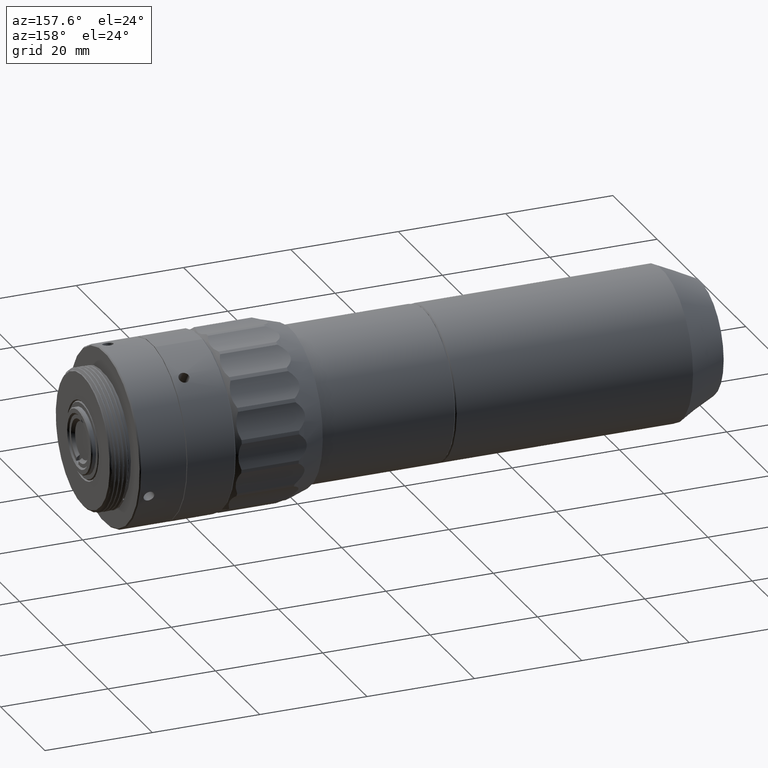
[diagram: clean part render]
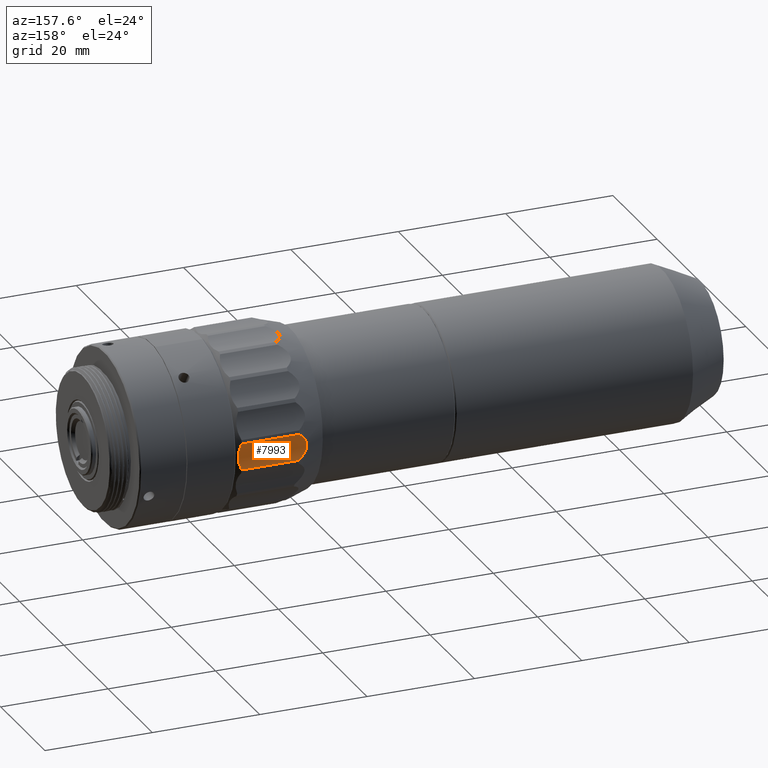
[diagram: same view with one face highlighted and labeled with its STEP entity id]
A machine part, auxiliary view. The second image highlights one B-rep face of the part: STEP entity #7993.
In plain terms, the highlighted cylindrical surface (partial cylindrical patch) has radius 10 mm, axis along (1, 0, 0).
Its self-contained STEP definition (entity closure, byte-faithful):
#874 = CARTESIAN_POINT ( 'NONE',  ( 24.43572500525977631, 14.45136645662996067, 72.06540957647895596 ) ) ;
#1125 = CARTESIAN_POINT ( 'NONE',  ( 25.37886236187067013, 14.60968303848795813, 70.89377789609189051 ) ) ;
#1288 = LINE ( 'NONE', #20358, #12922 ) ;
#2643 = VERTEX_POINT ( 'NONE', #3071 ) ;
#3071 = CARTESIAN_POINT ( 'NONE',  ( 25.76425907758551048, 14.80047125062194446, 75.51496427602772599 ) ) ;
#4043 = EDGE_LOOP ( 'NONE', ( #10426, #12063, #10782, #12288 ) ) ;
#4434 = CARTESIAN_POINT ( 'NONE',  ( 36.46425907759164886, 14.80047125062194446, 75.51496427602772599 ) ) ;
#4611 = CARTESIAN_POINT ( 'NONE',  ( 24.20144253388970412, 14.43262482175803108, 73.17374834973583120 ) ) ;
#4849 = CARTESIAN_POINT ( 'NONE',  ( 24.56251818497924333, 14.47087733236256035, 71.84483736942345899 ) ) ;
#5052 = DIRECTION ( 'NONE',  ( 1.000000000000000000, 0.000000000000000000, 0.000000000000000000 ) ) ;
#5280 = CARTESIAN_POINT ( 'NONE',  ( 36.46425907759164886, 14.80047125062194446, 75.51496427602772599 ) ) ;
#5856 = B_SPLINE_CURVE_WITH_KNOTS ( 'NONE', 3,
 ( #10771, #7040, #18491, #12646, #22369, #19865, #6661, #20247, #10517, #5280 ),
 .UNSPECIFIED., .F., .F.,
 ( 4, 2, 2, 2, 4 ),
 ( 1.398578778534940505E-17, 0.001274480159706693760, 0.002548960319413373643, 0.003823440479120053526, 0.005097920638826733408 ),
 .UNSPECIFIED. ) ;
#6247 = VERTEX_POINT ( 'NONE', #16790 ) ;
#6609 = CARTESIAN_POINT ( 'NONE',  ( 24.85831798173217777, 14.51923568401270259, 71.43341021666023494 ) ) ;
#6661 = CARTESIAN_POINT ( 'NONE',  ( 36.92018048830208699, 14.47719618345560022, 73.89518809513694464 ) ) ;
#6725 = CARTESIAN_POINT ( 'NONE',  ( 25.02076952798814347, 14.63508129636287869, 74.84531054459854715 ) ) ;
#6850 = CARTESIAN_POINT ( 'NONE',  ( 24.43228681305926386, 14.49881527963279382, 74.02897023541585497 ) ) ;
#7040 = CARTESIAN_POINT ( 'NONE',  ( 36.62124629936771925, 14.58992248713363971, 70.96301703124602511 ) ) ;
#7993 = ADVANCED_FACE ( 'NONE', ( #10912 ), #18512, .F. ) ;
#8198 = CARTESIAN_POINT ( 'NONE',  ( 36.46425907759165597, 14.67934525651283728, 70.57279280538578803 ) ) ;
#8477 = CARTESIAN_POINT ( 'NONE',  ( 24.21390534560338992, 14.43821037216553016, 73.30224784130243165 ) ) ;
#8852 = CARTESIAN_POINT ( 'NONE',  ( 25.76425907758549272, 14.67934525651283728, 70.57279280538578803 ) ) ;
#9034 = DIRECTION ( 'NONE',  ( -1.000000000000000000, -0.000000000000000000, -0.000000000000000000 ) ) ;
#10342 = CARTESIAN_POINT ( 'NONE',  ( 24.20208820136315708, 14.42651488071182619, 72.91929957618501135 ) ) ;
#10426 = ORIENTED_EDGE ( 'NONE', *, *, #22778, .F. ) ;
#10464 = CARTESIAN_POINT ( 'NONE',  ( 25.56756979872729829, 14.64349316649185795, 70.72924461481908054 ) ) ;
#10517 = CARTESIAN_POINT ( 'NONE',  ( 36.62139389121818311, 14.69193764029637173, 75.12922688590818154 ) ) ;
#10596 = CARTESIAN_POINT ( 'NONE',  ( 25.76425907758551048, 14.80047125062194446, 75.51496427602772599 ) ) ;
#10714 = CARTESIAN_POINT ( 'NONE',  ( 24.85223538077675087, 14.59700813527836694, 74.65582744075466337 ) ) ;
#10771 = CARTESIAN_POINT ( 'NONE',  ( 36.46425907759165597, 14.67934525651283728, 70.57279280538578803 ) ) ;
#10782 = ORIENTED_EDGE ( 'NONE', *, *, #21091, .F. ) ;
#10912 = FACE_OUTER_BOUND ( 'NONE', #4043, .T. ) ;
#11285 = B_SPLINE_CURVE_WITH_KNOTS ( 'NONE', 3,
 ( #10596, #18190, #12593, #6725, #10714, #21691, #6850, #21816, #18313, #8477, #4611, #10342, #14331, #21934, #17947, #874, #4849, #6609, #14215, #1125, #10464, #8852 ),
 .UNSPECIFIED., .F., .F.,
 ( 4, 2, 2, 2, 2, 2, 2, 2, 2, 2, 4 ),
 ( 1.743375517060540341E-17, 0.0007603032413495378365, 0.001520606482699058109, 0.002280909724048578273, 0.002661061344723339873, 0.003041212965398101473, 0.003421364586072863073, 0.003801516206747625106, 0.004561819448097105371, 0.005322122689446586938, 0.006082425930796068504 ),
 .UNSPECIFIED. ) ;
#12063 = ORIENTED_EDGE ( 'NONE', *, *, #13818, .F. ) ;
#12288 = ORIENTED_EDGE ( 'NONE', *, *, #17616, .F. ) ;
#12535 = DIRECTION ( 'NONE',  ( 0.000000000000000000, 0.3188937762648219598, -0.9477904617897152661 ) ) ;
#12593 = CARTESIAN_POINT ( 'NONE',  ( 25.37743441865542238, 14.71485256217145654, 75.19659218055055305 ) ) ;
#12646 = CARTESIAN_POINT ( 'NONE',  ( 36.91798656612413509, 14.43682633883746469, 72.19310035137165471 ) ) ;
#12922 = VECTOR ( 'NONE', #9034, 1000.000000000000000 ) ;
#13818 = EDGE_CURVE ( 'NONE', #17374, #21770, #5856, .T. ) ;
#14215 = CARTESIAN_POINT ( 'NONE',  ( 25.02434504061425358, 14.54757791741299044, 71.24596993704039960 ) ) ;
#14331 = CARTESIAN_POINT ( 'NONE',  ( 24.21482652098152144, 14.42592169107167877, 72.79349645428804649 ) ) ;
#16470 = DIRECTION ( 'NONE',  ( 1.000000000000000000, 0.000000000000000000, 0.000000000000000000 ) ) ;
#16790 = CARTESIAN_POINT ( 'NONE',  ( 25.76425907758549272, 14.67934525651283728, 70.57279280538578803 ) ) ;
#17374 = VERTEX_POINT ( 'NONE', #8198 ) ;
#17616 = EDGE_CURVE ( 'NONE', #2643, #6247, #11285, .T. ) ;
#17947 = CARTESIAN_POINT ( 'NONE',  ( 24.29989527625920331, 14.43343293331837884, 72.42058819236936529 ) ) ;
#18008 = CARTESIAN_POINT ( 'NONE',  ( 20.76425907758650169, 24.42668810615917607, 72.80646855881293789 ) ) ;
#18190 = CARTESIAN_POINT ( 'NONE',  ( 25.56698777001205869, 14.75686931828281878, 75.35999941736127994 ) ) ;
#18198 = CARTESIAN_POINT ( 'NONE',  ( 20.76425907758650169, 14.67934525651283373, 70.57279280538578803 ) ) ;
#18313 = CARTESIAN_POINT ( 'NONE',  ( 24.26164326499687718, 14.45363996885444102, 73.55064285992470730 ) ) ;
#18491 = CARTESIAN_POINT ( 'NONE',  ( 36.74605777183966637, 14.52246055885801290, 71.36430512168925588 ) ) ;
#18512 = CYLINDRICAL_SURFACE ( 'NONE', #21961, 10.00000000000000711 ) ;
#19865 = CARTESIAN_POINT ( 'NONE',  ( 36.96434885052335773, 14.44000668398629728, 73.47465514466745162 ) ) ;
#20247 = CARTESIAN_POINT ( 'NONE',  ( 36.74734134977602196, 14.60411982693724475, 74.72866837900342318 ) ) ;
#20358 = CARTESIAN_POINT ( 'NONE',  ( 20.76425907758650169, 14.80047125062194446, 75.51496427602772599 ) ) ;
#21091 = EDGE_CURVE ( 'NONE', #6247, #17374, #22202, .T. ) ;
#21691 = CARTESIAN_POINT ( 'NONE',  ( 24.55845473512662380, 14.52897597655759299, 74.24800635009341931 ) ) ;
#21770 = VERTEX_POINT ( 'NONE', #4434 ) ;
#21816 = CARTESIAN_POINT ( 'NONE',  ( 24.29682750974316363, 14.46350382083229569, 73.67206153409637182 ) ) ;
#21934 = CARTESIAN_POINT ( 'NONE',  ( 24.26349218467731106, 14.42934380446747511, 72.54454475678228675 ) ) ;
#21961 = AXIS2_PLACEMENT_3D ( 'NONE', #18008, #5052, #12535 ) ;
#22202 = LINE ( 'NONE', #18198, #23723 ) ;
#22369 = CARTESIAN_POINT ( 'NONE',  ( 36.96416903073073001, 14.41931034449281235, 72.62572156217294150 ) ) ;
#22778 = EDGE_CURVE ( 'NONE', #21770, #2643, #1288, .T. ) ;
#23723 = VECTOR ( 'NONE', #16470, 1000.000000000000000 ) ;